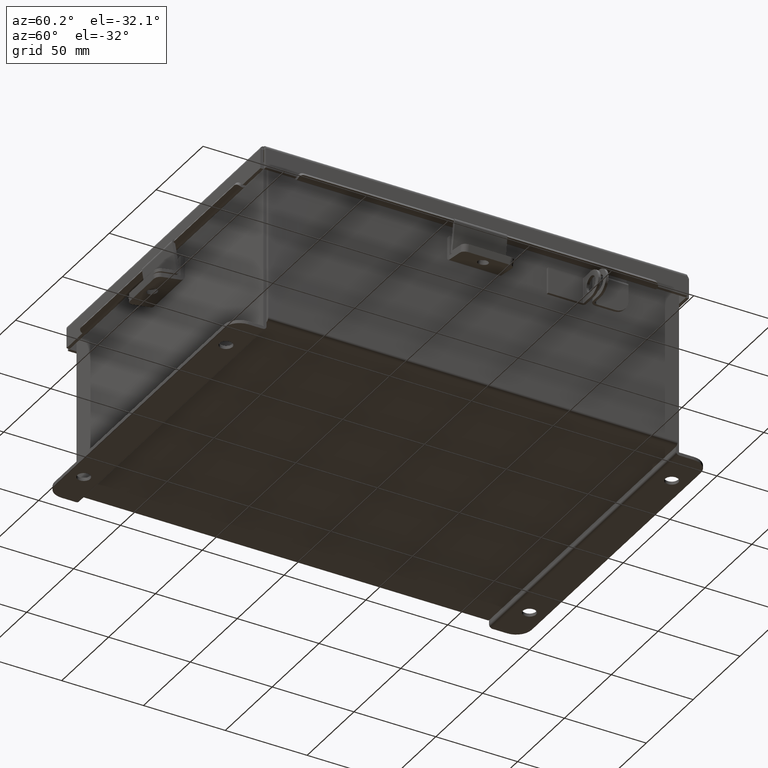
[diagram: clean part render]
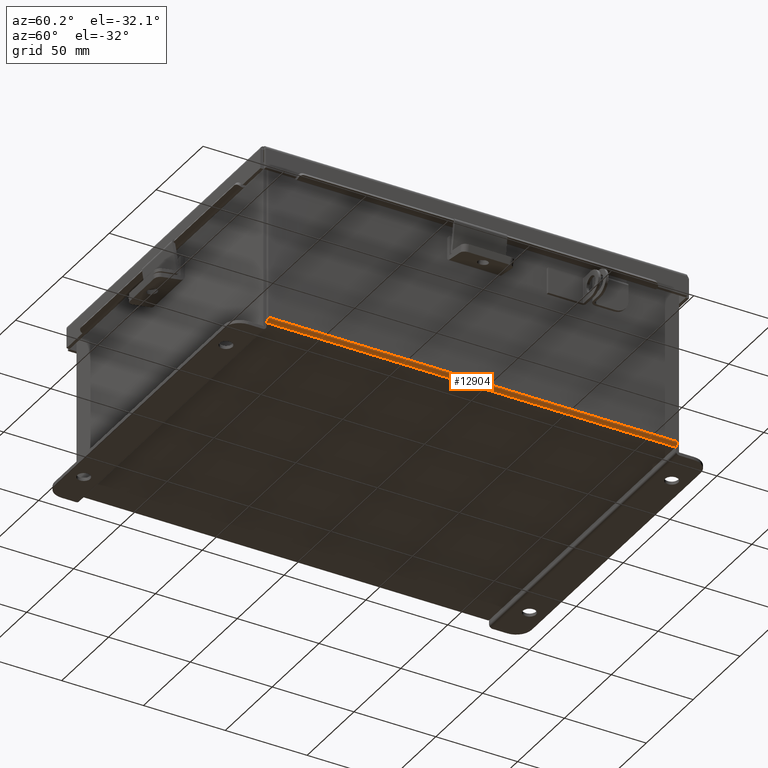
[diagram: same view with one face highlighted and labeled with its STEP entity id]
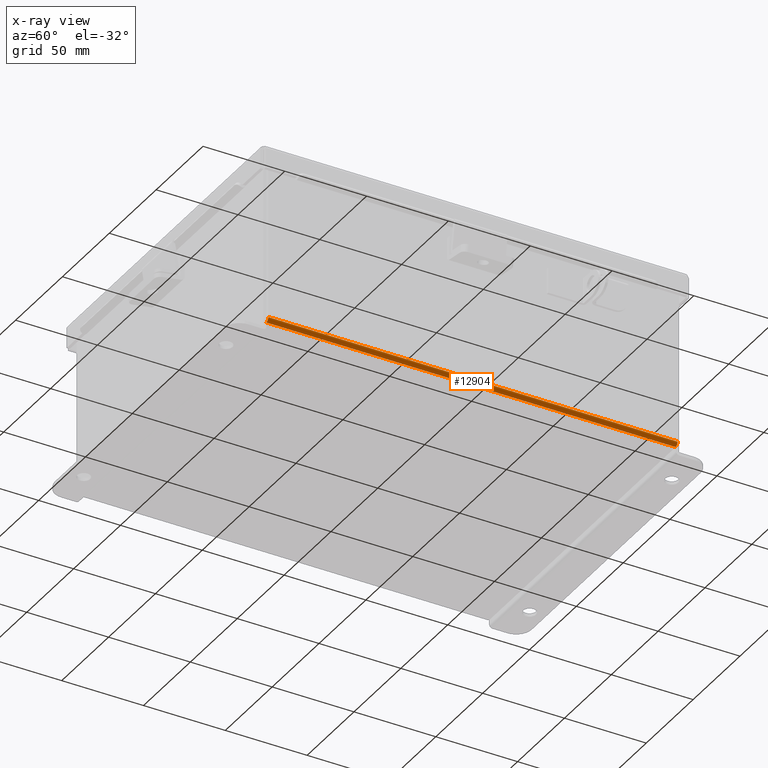
[diagram: x-ray of the same camera — body ghosted, the highlighted face saturated]
A machine part, auxiliary view. The second image highlights one B-rep face of the part: STEP entity #12904.
The next image is the same camera in x-ray: the body ghosted, the highlighted face saturated — about 0% of this face is hidden behind the body in this view.
In plain terms, the highlighted cylindrical surface (edge-blend (fillet) strip) has radius 2.2276 mm, axis along (0, 1, 0).
Its self-contained STEP definition (entity closure, byte-faithful):
#18 = FACE_OUTER_BOUND ( 'NONE', #7018, .T. ) ;
#134 = EDGE_CURVE ( 'NONE', #4168, #11045, #3670, .T. ) ;
#184 = DIRECTION ( 'NONE',  ( 0.0000000000000000000, 1.000000000000000000, 0.0000000000000000000 ) ) ;
#446 = CARTESIAN_POINT ( 'NONE',  ( 3.912300000000000100, -4.925300000000000000, 0.01300000000000015000 ) ) ;
#1037 = DIRECTION ( 'NONE',  ( -0.0000000000000000000, -1.000000000000000000, -0.0000000000000000000 ) ) ;
#1153 = DIRECTION ( 'NONE',  ( -0.0000000000000000000, -1.000000000000000000, -0.0000000000000000000 ) ) ;
#1323 = CIRCLE ( 'NONE', #11939, 0.08770000000000009700 ) ;
#1376 = VERTEX_POINT ( 'NONE', #14620 ) ;
#2013 = ORIENTED_EDGE ( 'NONE', *, *, #5105, .T. ) ;
#2215 = LINE ( 'NONE', #16293, #8595 ) ;
#3018 = CYLINDRICAL_SURFACE ( 'NONE', #7294, 0.08770000000000026400 ) ;
#3670 = CIRCLE ( 'NONE', #13813, 0.08770000000000009700 ) ;
#3964 = DIRECTION ( 'NONE',  ( 1.000000000000000000, 0.0000000000000000000, -3.553037762569317100E-015 ) ) ;
#4168 = VERTEX_POINT ( 'NONE', #12841 ) ;
#4456 = DIRECTION ( 'NONE',  ( 0.0000000000000000000, 0.0000000000000000000, 1.000000000000000000 ) ) ;
#4712 = DIRECTION ( 'NONE',  ( -0.0000000000000000000, -1.000000000000000000, -0.0000000000000000000 ) ) ;
#4920 = CARTESIAN_POINT ( 'NONE',  ( 3.912300000000000100, 4.925300000000000000, -0.07469999999999994700 ) ) ;
#5016 = DIRECTION ( 'NONE',  ( 0.0000000000000000000, 1.000000000000000000, 0.0000000000000000000 ) ) ;
#5105 = EDGE_CURVE ( 'NONE', #1376, #11045, #2215, .T. ) ;
#7018 = EDGE_LOOP ( 'NONE', ( #8353, #7941, #2013, #16147 ) ) ;
#7294 = AXIS2_PLACEMENT_3D ( 'NONE', #7842, #184, #3964 ) ;
#7307 = VERTEX_POINT ( 'NONE', #15898 ) ;
#7654 = EDGE_CURVE ( 'NONE', #1376, #7307, #1323, .T. ) ;
#7842 = CARTESIAN_POINT ( 'NONE',  ( 3.912300000000000100, 4.925300000000000000, 0.01300000000000015000 ) ) ;
#7941 = ORIENTED_EDGE ( 'NONE', *, *, #7654, .F. ) ;
#8353 = ORIENTED_EDGE ( 'NONE', *, *, #12147, .F. ) ;
#8595 = VECTOR ( 'NONE', #1037, 39.37007874015748100 ) ;
#11045 = VERTEX_POINT ( 'NONE', #11739 ) ;
#11739 = CARTESIAN_POINT ( 'NONE',  ( 4.000000000000000900, -4.925300000000000000, 0.01299999999999984300 ) ) ;
#11939 = AXIS2_PLACEMENT_3D ( 'NONE', #12688, #5016, #13923 ) ;
#12147 = EDGE_CURVE ( 'NONE', #7307, #4168, #15597, .T. ) ;
#12231 = VECTOR ( 'NONE', #1153, 39.37007874015748100 ) ;
#12688 = CARTESIAN_POINT ( 'NONE',  ( 3.912300000000000100, 4.925299999999999100, 0.01300000000000015000 ) ) ;
#12841 = CARTESIAN_POINT ( 'NONE',  ( 3.912300000000000100, -4.925300000000000000, -0.07470000000000000300 ) ) ;
#12904 = ADVANCED_FACE ( 'NONE', ( #18 ), #3018, .T. ) ;
#13813 = AXIS2_PLACEMENT_3D ( 'NONE', #446, #4712, #4456 ) ;
#13923 = DIRECTION ( 'NONE',  ( 0.0000000000000000000, 0.0000000000000000000, 1.000000000000000000 ) ) ;
#14620 = CARTESIAN_POINT ( 'NONE',  ( 4.000000000000000900, 4.925299999999999100, 0.01299999999999984300 ) ) ;
#15597 = LINE ( 'NONE', #4920, #12231 ) ;
#15898 = CARTESIAN_POINT ( 'NONE',  ( 3.912300000000000100, 4.925299999999999100, -0.07469999999999994700 ) ) ;
#16147 = ORIENTED_EDGE ( 'NONE', *, *, #134, .F. ) ;
#16293 = CARTESIAN_POINT ( 'NONE',  ( 4.000000000000000900, -4.925300000000000000, 0.01299999999999984300 ) ) ;